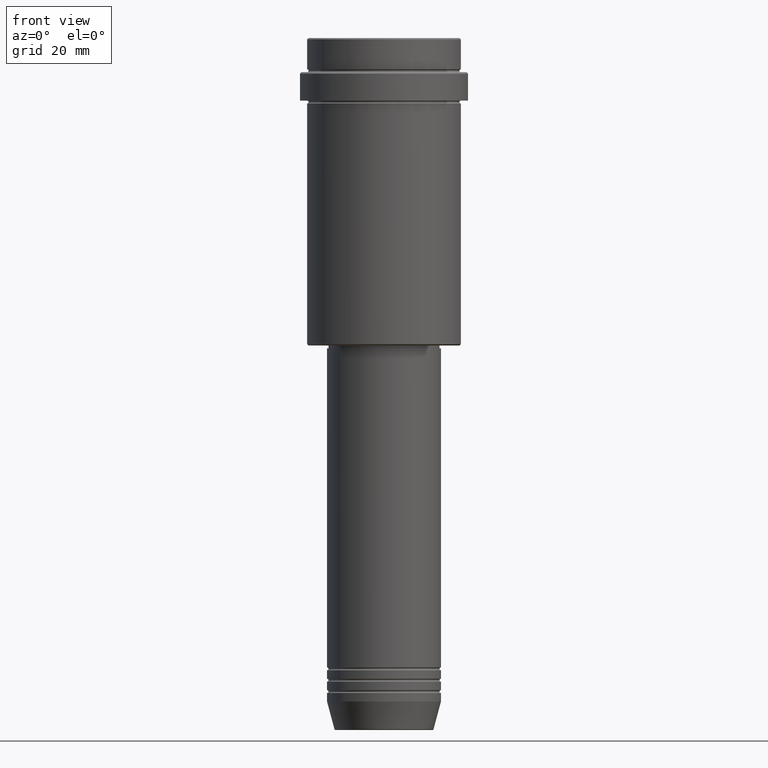
[diagram: clean part render]
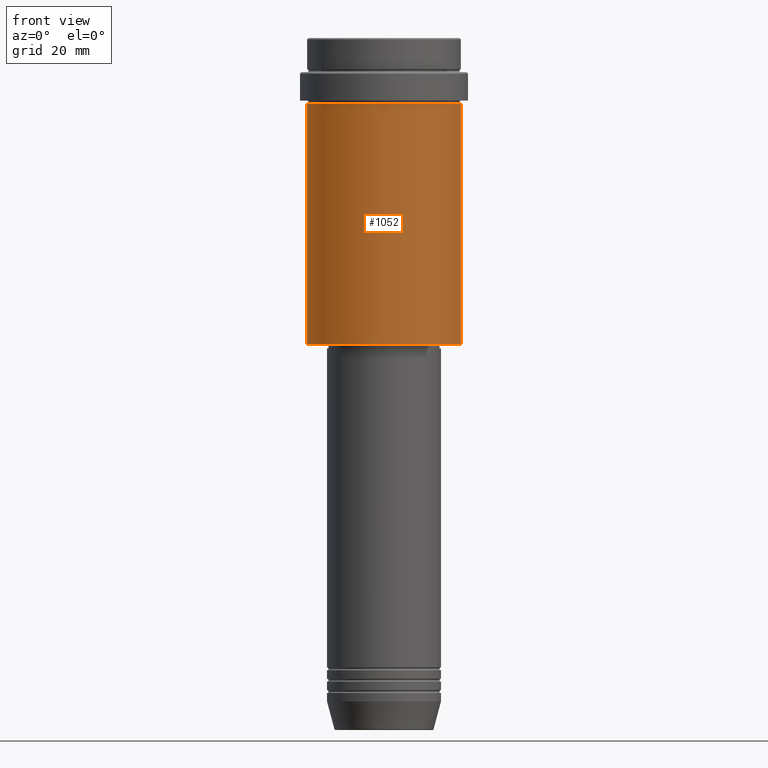
[diagram: same view with one face highlighted and labeled with its STEP entity id]
A machine part, front view. The second image highlights one B-rep face of the part: STEP entity #1052.
In plain terms, the highlighted cylindrical surface (partial cylindrical patch) has radius 27 mm, axis along (-0, -0, 1).
Its self-contained STEP definition (entity closure, byte-faithful):
#4 = CARTESIAN_POINT ( 'NONE',  ( 27.00000000000000355, 0.000000000000000000, -23.00000000000001421 ) ) ;
#52 = VERTEX_POINT ( 'NONE', #4 ) ;
#65 = EDGE_CURVE ( 'NONE', #892, #52, #442, .T. ) ;
#66 = ORIENTED_EDGE ( 'NONE', *, *, #65, .T. ) ;
#97 = DIRECTION ( 'NONE',  ( -0.000000000000000000, -0.000000000000000000, 1.000000000000000000 ) ) ;
#112 = FACE_OUTER_BOUND ( 'NONE', #1134, .T. ) ;
#152 = DIRECTION ( 'NONE',  ( -0.000000000000000000, -0.000000000000000000, 1.000000000000000000 ) ) ;
#173 = CARTESIAN_POINT ( 'NONE',  ( 0.000000000000000000, 0.000000000000000000, -107.5000000000000000 ) ) ;
#264 = DIRECTION ( 'NONE',  ( -1.000000000000000000, 0.000000000000000000, 0.000000000000000000 ) ) ;
#305 = DIRECTION ( 'NONE',  ( -0.000000000000000000, -0.000000000000000000, 1.000000000000000000 ) ) ;
#329 = AXIS2_PLACEMENT_3D ( 'NONE', #648, #305, #1169 ) ;
#397 = VECTOR ( 'NONE', #152, 1000.000000000000000 ) ;
#399 = AXIS2_PLACEMENT_3D ( 'NONE', #1076, #97, #1098 ) ;
#442 = LINE ( 'NONE', #882, #397 ) ;
#443 = CIRCLE ( 'NONE', #399, 27.00000000000000355 ) ;
#513 = CIRCLE ( 'NONE', #1036, 27.00000000000000355 ) ;
#575 = CARTESIAN_POINT ( 'NONE',  ( -27.00000000000000355, 3.306546357697854128E-15, -23.00000000000001421 ) ) ;
#605 = EDGE_CURVE ( 'NONE', #1095, #52, #443, .T. ) ;
#625 = EDGE_CURVE ( 'NONE', #653, #1095, #976, .T. ) ;
#648 = CARTESIAN_POINT ( 'NONE',  ( 0.000000000000000000, 0.000000000000000000, 0.000000000000000000 ) ) ;
#653 = VERTEX_POINT ( 'NONE', #1229 ) ;
#674 = VECTOR ( 'NONE', #1177, 1000.000000000000000 ) ;
#741 = ORIENTED_EDGE ( 'NONE', *, *, #820, .T. ) ;
#820 = EDGE_CURVE ( 'NONE', #653, #892, #513, .T. ) ;
#882 = CARTESIAN_POINT ( 'NONE',  ( 27.00000000000000355, 0.000000000000000000, 0.000000000000000000 ) ) ;
#892 = VERTEX_POINT ( 'NONE', #1129 ) ;
#976 = LINE ( 'NONE', #980, #674 ) ;
#980 = CARTESIAN_POINT ( 'NONE',  ( -27.00000000000000355, 3.306546357697854128E-15, 0.000000000000000000 ) ) ;
#1036 = AXIS2_PLACEMENT_3D ( 'NONE', #173, #1362, #264 ) ;
#1052 = ADVANCED_FACE ( 'NONE', ( #112 ), #1408, .T. ) ;
#1076 = CARTESIAN_POINT ( 'NONE',  ( 0.000000000000000000, 0.000000000000000000, -23.00000000000001421 ) ) ;
#1095 = VERTEX_POINT ( 'NONE', #575 ) ;
#1098 = DIRECTION ( 'NONE',  ( 1.000000000000000000, 0.000000000000000000, 0.000000000000000000 ) ) ;
#1129 = CARTESIAN_POINT ( 'NONE',  ( 27.00000000000000355, 0.000000000000000000, -107.5000000000000000 ) ) ;
#1134 = EDGE_LOOP ( 'NONE', ( #1392, #741, #66, #1190 ) ) ;
#1169 = DIRECTION ( 'NONE',  ( 1.000000000000000000, 0.000000000000000000, 0.000000000000000000 ) ) ;
#1177 = DIRECTION ( 'NONE',  ( -0.000000000000000000, -0.000000000000000000, 1.000000000000000000 ) ) ;
#1190 = ORIENTED_EDGE ( 'NONE', *, *, #605, .F. ) ;
#1229 = CARTESIAN_POINT ( 'NONE',  ( -27.00000000000000355, 3.306546357697854128E-15, -107.5000000000000000 ) ) ;
#1362 = DIRECTION ( 'NONE',  ( -0.000000000000000000, -0.000000000000000000, 1.000000000000000000 ) ) ;
#1392 = ORIENTED_EDGE ( 'NONE', *, *, #625, .F. ) ;
#1408 = CYLINDRICAL_SURFACE ( 'NONE', #329, 27.00000000000000355 ) ;